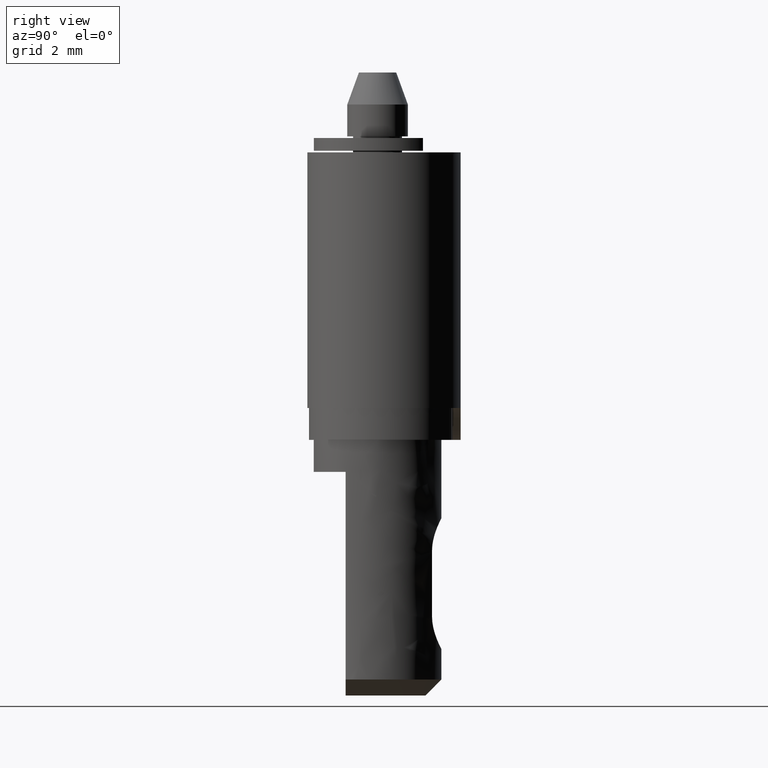
[diagram: clean part render]
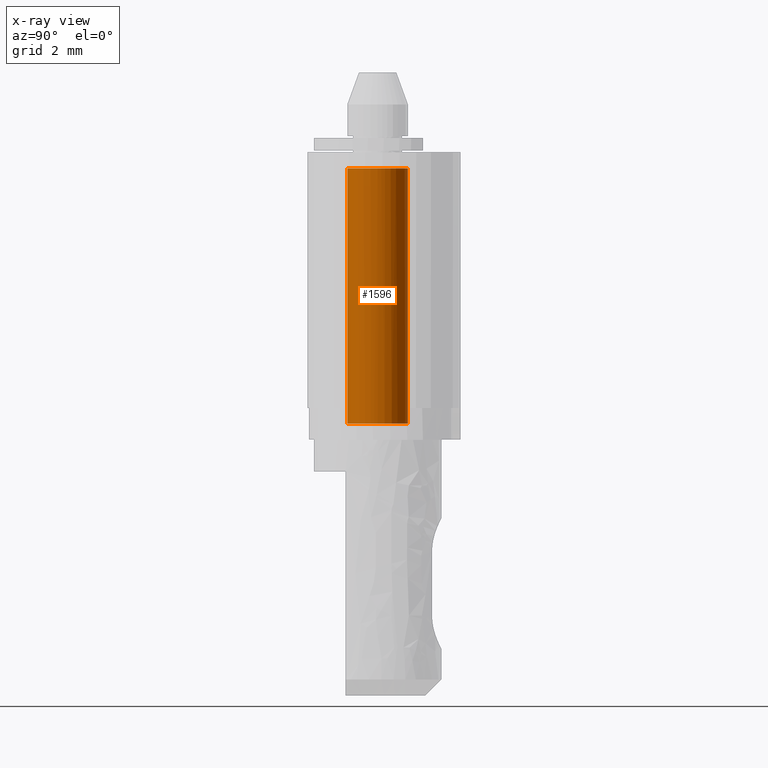
[diagram: x-ray — body ghosted, one internal face saturated and labeled with its STEP entity id]
A machine part, right view, then the same camera in x-ray: the body is ghosted and one INTERNAL B-rep face — a face not visible from any outside direction — is saturated and labeled: STEP entity #1596.
In plain terms, the highlighted face is a freeform B-spline surface patch.
Its self-contained STEP definition (entity closure, byte-faithful):
#1355=CARTESIAN_POINT('',(0.950000000000000,0.0,8.500000000000000));
#1356=VERTEX_POINT('',#1355);
#1357=CARTESIAN_POINT('',(0.008290208938605,0.949963826930514,8.499999999978543));
#1358=VERTEX_POINT('',#1357);
#1359=CARTESIAN_POINT('',(0.950000000000000,0.0,8.500000000000000));
#1360=CARTESIAN_POINT('',(0.950000000000093,0.941745649862831,8.499999999989273));
#1361=CARTESIAN_POINT('',(0.008290208938605,0.949963826930514,8.499999999978543));
#1369=(BOUNDED_CURVE()B_SPLINE_CURVE(2,(#1359,#1360,#1361),.UNSPECIFIED.,.F.,.U.)B_SPLINE_CURVE_WITH_KNOTS((3,3),(0.0,0.248460105625154),.UNSPECIFIED.)CURVE()GEOMETRIC_REPRESENTATION_ITEM()RATIONAL_B_SPLINE_CURVE((1.0,0.708910879666873,0.996414028008162))REPRESENTATION_ITEM(''));
#1370=EDGE_CURVE('',#1356,#1358,#1369,.T.);
#1418=CARTESIAN_POINT('',(0.008290208779606,-0.949963826910473,8.500000000000000));
#1419=VERTEX_POINT('',#1418);
#1425=CARTESIAN_POINT('',(0.008290208779606,-0.949963826910473,8.499999999999998));
#1426=CARTESIAN_POINT('',(0.950000000000000,-0.941745650009562,8.499999999999998));
#1427=CARTESIAN_POINT('',(0.950000000000000,0.0,8.500000000000000));
#1435=(BOUNDED_CURVE()B_SPLINE_CURVE(2,(#1425,#1426,#1427),.UNSPECIFIED.,.F.,.U.)B_SPLINE_CURVE_WITH_KNOTS((3,3),(0.751539894345399,1.0),.UNSPECIFIED.)CURVE()GEOMETRIC_REPRESENTATION_ITEM()RATIONAL_B_SPLINE_CURVE((0.996414028076311,0.708910879632373,1.0))REPRESENTATION_ITEM(''));
#1436=EDGE_CURVE('',#1419,#1356,#1435,.T.);
#1459=CARTESIAN_POINT('',(-0.008290208779606,0.949963826910473,8.500000000000000));
#1460=VERTEX_POINT('',#1459);
#1461=CARTESIAN_POINT('',(0.008290208938605,0.949963826930514,8.499999999978543));
#1462=CARTESIAN_POINT('',(-0.008290208779606,0.949963826910473,8.500000000000000));
#1463=QUASI_UNIFORM_CURVE('',1,(#1461,#1462),.UNSPECIFIED.,.F.,.U.);
#1464=EDGE_CURVE('',#1358,#1460,#1463,.T.);
#1529=CARTESIAN_POINT('',(0.008290208723455,-0.949963826910962,8.299999999999997));
#1530=CARTESIAN_POINT('',(0.958254035634418,-0.941673618187507,8.299999999999997));
#1531=CARTESIAN_POINT('',(0.949963826910962,0.008290208723455,8.299999999999997));
#1532=CARTESIAN_POINT('',(0.941673618187507,0.958254035634418,8.299999999999997));
#1533=CARTESIAN_POINT('',(-0.008290208723455,0.949963826910962,8.299999999999997));
#1534=CARTESIAN_POINT('',(0.008290208723455,-0.949963826910962,16.705000000000009));
#1535=CARTESIAN_POINT('',(0.958254035634418,-0.941673618187507,16.705000000000002));
#1536=CARTESIAN_POINT('',(0.949963826910962,0.008290208723455,16.705000000000009));
#1537=CARTESIAN_POINT('',(0.941673618187507,0.958254035634418,16.705000000000002));
#1538=CARTESIAN_POINT('',(-0.008290208723455,0.949963826910962,16.705000000000009));
#1546=(BOUNDED_SURFACE()B_SPLINE_SURFACE(2,1,((#1529,#1534),(#1530,#1535),(#1531,#1536),(#1532,#1537),(#1533,#1538)),.UNSPECIFIED.,.F.,.F.,.U.)B_SPLINE_SURFACE_WITH_KNOTS((3,2,3),(2,2),(3.141592653589793,4.712388980384690,6.283185307179586),(0.0,8.405000000000008),.UNSPECIFIED.)GEOMETRIC_REPRESENTATION_ITEM()RATIONAL_B_SPLINE_SURFACE(((1.0,1.0),(0.707106781186548,0.707106781186548),(1.0,1.0),(0.707106781186548,0.707106781186548),(1.0,1.0)))REPRESENTATION_ITEM('')SURFACE());
#1547=ORIENTED_EDGE('',*,*,#1436,.F.);
#1548=CARTESIAN_POINT('',(0.008290208775683,-0.949963826910507,16.500000000000000));
#1549=VERTEX_POINT('',#1548);
#1550=CARTESIAN_POINT('',(0.008290208779606,-0.949963826910473,8.500000000000000));
#1551=CARTESIAN_POINT('',(0.008290208775683,-0.949963826910507,16.500000000000000));
#1552=QUASI_UNIFORM_CURVE('',1,(#1550,#1551),.UNSPECIFIED.,.F.,.U.);
#1553=EDGE_CURVE('',#1419,#1549,#1552,.T.);
#1554=ORIENTED_EDGE('',*,*,#1553,.T.);
#1555=CARTESIAN_POINT('',(0.950000000000000,0.0,16.500000000000000));
#1556=VERTEX_POINT('',#1555);
#1557=CARTESIAN_POINT('',(0.950000000000000,0.0,16.500000000000000));
#1558=CARTESIAN_POINT('',(0.950000000000000,-0.941745650013451,16.500000000000004));
#1559=CARTESIAN_POINT('',(0.008290208775683,-0.949963826910507,16.500000000000004));
#1567=(BOUNDED_CURVE()B_SPLINE_CURVE(2,(#1557,#1558,#1559),.UNSPECIFIED.,.F.,.U.)B_SPLINE_CURVE_WITH_KNOTS((3,3),(0.500000000000000,0.748460105655329),.UNSPECIFIED.)CURVE()GEOMETRIC_REPRESENTATION_ITEM()RATIONAL_B_SPLINE_CURVE((1.0,0.708910879631521,0.996414028077994))REPRESENTATION_ITEM(''));
#1568=EDGE_CURVE('',#1556,#1549,#1567,.T.);
#1569=ORIENTED_EDGE('',*,*,#1568,.F.);
#1570=CARTESIAN_POINT('',(-0.008290208775683,0.949963826910507,16.500000000000000));
#1571=VERTEX_POINT('',#1570);
#1572=CARTESIAN_POINT('',(-0.008290208775683,0.949963826910507,16.500000000000004));
#1573=CARTESIAN_POINT('',(-0.004145183305782,0.950000000000000,16.500000000000004));
#1574=CARTESIAN_POINT('',(0.0,0.950000000000000,16.500000000000000));
#1575=CARTESIAN_POINT('',(0.950000000000000,0.950000000000000,16.499999999999996));
#1576=CARTESIAN_POINT('',(0.950000000000000,0.0,16.500000000000000));
#1584=(BOUNDED_CURVE()B_SPLINE_CURVE(2,(#1572,#1573,#1574,#1575,#1576),.UNSPECIFIED.,.F.,.U.)B_SPLINE_CURVE_WITH_KNOTS((3,2,3),(0.248460105655329,0.250000000000000,0.500000000000000),.UNSPECIFIED.)CURVE()GEOMETRIC_REPRESENTATION_ITEM()RATIONAL_B_SPLINE_CURVE((0.996414028077994,0.998195901555026,1.0,0.707106781186547,1.0))REPRESENTATION_ITEM(''));
#1585=EDGE_CURVE('',#1571,#1556,#1584,.T.);
#1586=ORIENTED_EDGE('',*,*,#1585,.F.);
#1587=CARTESIAN_POINT('',(-0.008290208779606,0.949963826910473,8.500000000000000));
#1588=CARTESIAN_POINT('',(-0.008290208775683,0.949963826910507,16.500000000000000));
#1589=QUASI_UNIFORM_CURVE('',1,(#1587,#1588),.UNSPECIFIED.,.F.,.U.);
#1590=EDGE_CURVE('',#1460,#1571,#1589,.T.);
#1591=ORIENTED_EDGE('',*,*,#1590,.F.);
#1592=ORIENTED_EDGE('',*,*,#1464,.F.);
#1593=ORIENTED_EDGE('',*,*,#1370,.F.);
#1594=EDGE_LOOP('',(#1547,#1554,#1569,#1586,#1591,#1592,#1593));
#1595=FACE_OUTER_BOUND('',#1594,.T.);
#1596=ADVANCED_FACE('',(#1595),#1546,.F.);